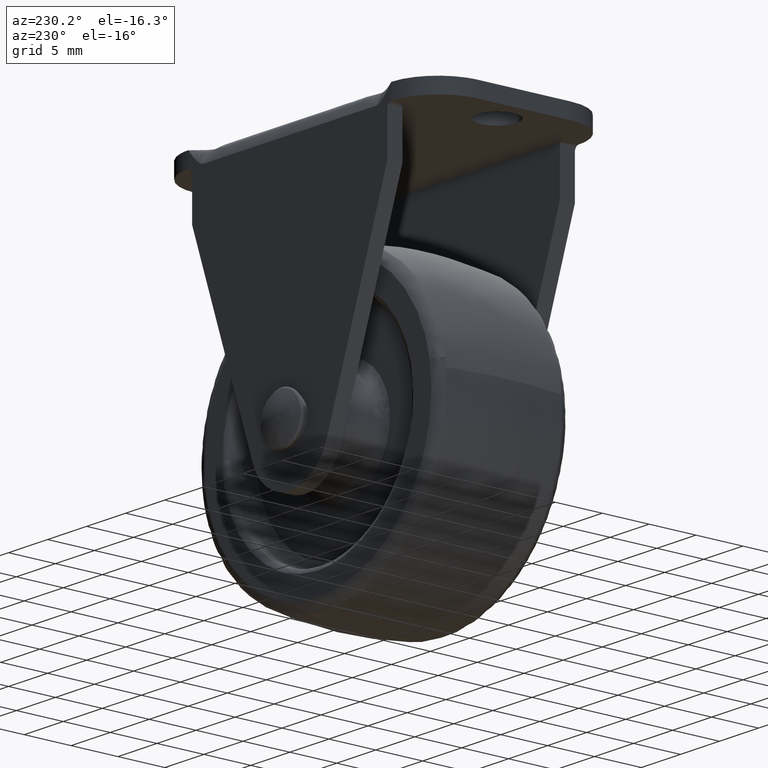
[diagram: clean part render]
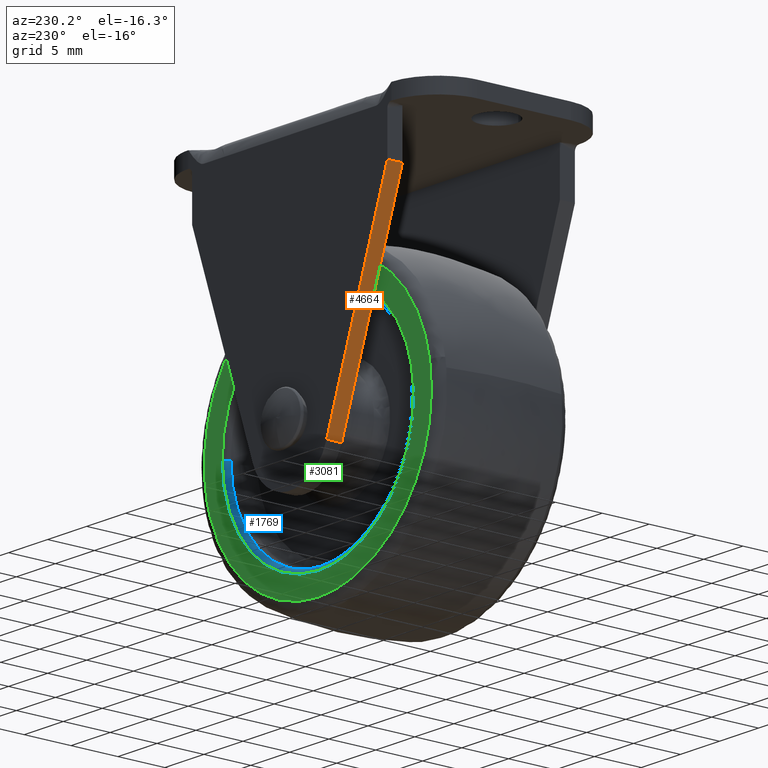
[diagram: same view with three faces highlighted in distinct colors, each labeled with its STEP entity id]
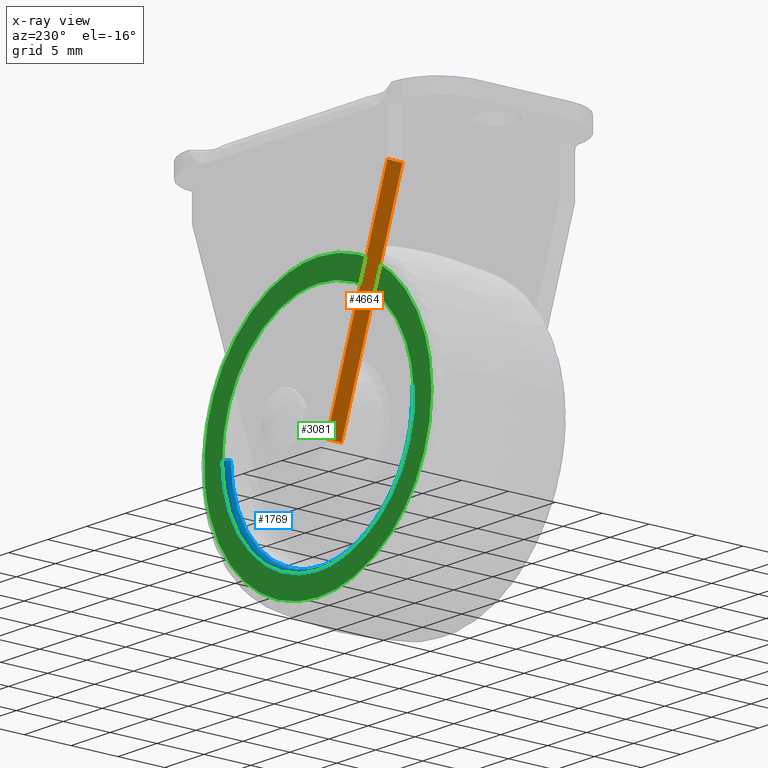
[diagram: x-ray of the same camera — body ghosted, the three highlighted faces saturated]
A machine part, auxiliary view with three faces highlighted in distinct colors.
The next image is the same camera in x-ray (body ghosted, the three faces saturated) — at least one of them is partly hidden behind the body in this view.
Their STEP definitions:

[orange] entity #4664 — the highlighted face is a freeform B-spline surface patch.
#4629=CARTESIAN_POINT('',(-12.888740007765930,8.320079597570420,20.606743158005479));
#4630=CARTESIAN_POINT('',(-4.328720783489982,8.320079597570420,-3.763720752302182));
#4631=CARTESIAN_POINT('',(-12.888740007765930,10.079920059106829,20.606743158005479));
#4632=CARTESIAN_POINT('',(-4.328720783489982,10.079920059106829,-3.763720752302182));
#4633=B_SPLINE_SURFACE_WITH_KNOTS('',1,1,((#4629,#4631),(#4630,#4632)),.UNSPECIFIED.,.F.,.F.,.U.,(2,2),(2,2),(0.0,25.830087888421549),(0.041708123734593,0.958291697451472),.UNSPECIFIED.);
#4634=CARTESIAN_POINT('',(-4.717459000000000,8.400000000000000,-2.656979000000170));
#4635=VERTEX_POINT('',#4634);
#4636=CARTESIAN_POINT('',(-12.500002000000000,8.400000000000000,19.500001999999999));
#4637=VERTEX_POINT('',#4636);
#4638=CARTESIAN_POINT('',(-4.717459000000000,8.400000000000000,-2.656979000000170));
#4639=CARTESIAN_POINT('',(-12.500002000000000,8.400000000000000,19.500001999999999));
#4640=QUASI_UNIFORM_CURVE('',1,(#4638,#4639),.UNSPECIFIED.,.F.,.U.);
#4641=EDGE_CURVE('',#4635,#4637,#4640,.T.);
#4642=ORIENTED_EDGE('',*,*,#4641,.T.);
#4643=CARTESIAN_POINT('',(-12.500002000000000,10.0,19.500001999999999));
#4644=VERTEX_POINT('',#4643);
#4645=CARTESIAN_POINT('',(-12.500002000000000,10.0,19.500001999999999));
#4646=CARTESIAN_POINT('',(-12.500002000000000,8.400000000000000,19.500001999999999));
#4647=QUASI_UNIFORM_CURVE('',1,(#4645,#4646),.UNSPECIFIED.,.F.,.U.);
#4648=EDGE_CURVE('',#4644,#4637,#4647,.T.);
#4649=ORIENTED_EDGE('',*,*,#4648,.F.);
#4650=CARTESIAN_POINT('',(-4.717459000000000,10.0,-2.656979000000085));
#4651=VERTEX_POINT('',#4650);
#4652=CARTESIAN_POINT('',(-4.717459000000000,10.0,-2.656979000000085));
#4653=CARTESIAN_POINT('',(-12.500002000000000,10.0,19.500001999999999));
#4654=QUASI_UNIFORM_CURVE('',1,(#4652,#4653),.UNSPECIFIED.,.F.,.U.);
#4655=EDGE_CURVE('',#4651,#4644,#4654,.T.);
#4656=ORIENTED_EDGE('',*,*,#4655,.F.);
#4657=CARTESIAN_POINT('',(-4.717459000000000,10.0,-2.656979000000085));
#4658=CARTESIAN_POINT('',(-4.717459000000000,8.400000000000000,-2.656979000000170));
#4659=QUASI_UNIFORM_CURVE('',1,(#4657,#4658),.UNSPECIFIED.,.F.,.U.);
#4660=EDGE_CURVE('',#4651,#4635,#4659,.T.);
#4661=ORIENTED_EDGE('',*,*,#4660,.T.);
#4662=EDGE_LOOP('',(#4642,#4649,#4656,#4661));
#4663=FACE_OUTER_BOUND('',#4662,.T.);
#4664=ADVANCED_FACE('',(#4663),#4633,.F.);

[blue] entity #1769 — the highlighted face is a freeform B-spline surface patch.
#378=CARTESIAN_POINT('',(-8.663009304085811,6.500000000000000,-7.938184288445427));
#379=VERTEX_POINT('',#378);
#385=CARTESIAN_POINT('',(-11.721396667625029,6.500000000598356,0.819365706012148));
#386=VERTEX_POINT('',#385);
#387=CARTESIAN_POINT('',(-11.721396667625028,6.500000000598356,0.819365706012148));
#388=CARTESIAN_POINT('',(-11.750000000000004,6.500000000000000,0.410182111528568));
#389=CARTESIAN_POINT('',(-11.750000000000000,6.500000000000000,8.173480E-016));
#390=CARTESIAN_POINT('',(-11.750000000000005,6.500000000000002,-4.569324082704115));
#391=CARTESIAN_POINT('',(-8.663009304085811,6.500000000000001,-7.938184288445428));
#399=(BOUNDED_CURVE()B_SPLINE_CURVE(2,(#387,#388,#389,#390,#391),.UNSPECIFIED.,.F.,.U.)B_SPLINE_CURVE_WITH_KNOTS((3,2,3),(0.737833686535114,0.750000000000000,0.868415186394287),.UNSPECIFIED.)CURVE()GEOMETRIC_REPRESENTATION_ITEM()RATIONAL_B_SPLINE_CURVE((0.972879876387023,0.985746277152704,1.0,0.861267979602330,0.853959783638628))REPRESENTATION_ITEM(''));
#400=EDGE_CURVE('',#386,#379,#399,.T.);
#417=CARTESIAN_POINT('',(11.749072269394510,6.500000000625669,-0.147650968655843));
#418=VERTEX_POINT('',#417);
#434=CARTESIAN_POINT('',(4.365578881762574,6.500000000045359,-10.908905583374930));
#435=VERTEX_POINT('',#434);
#436=CARTESIAN_POINT('',(4.365578881762575,6.500000000045359,-10.908905583374933));
#437=CARTESIAN_POINT('',(11.650471955109312,6.500000000202570,-7.993601649917547));
#438=CARTESIAN_POINT('',(11.749072269394508,6.500000000625669,-0.147650968655843));
#446=(BOUNDED_CURVE()B_SPLINE_CURVE(2,(#436,#437,#438),.UNSPECIFIED.,.F.,.U.)B_SPLINE_CURVE_WITH_KNOTS((3,3),(0.063083066311740,0.247784295920936),.UNSPECIFIED.)CURVE()GEOMETRIC_REPRESENTATION_ITEM()RATIONAL_B_SPLINE_CURVE((0.889485124632236,0.782299011502005,0.994854295642190))REPRESENTATION_ITEM(''));
#447=EDGE_CURVE('',#435,#418,#446,.T.);
#487=CARTESIAN_POINT('',(0.0,6.500000000000000,-11.750000000000000));
#488=VERTEX_POINT('',#487);
#489=CARTESIAN_POINT('',(0.0,6.500000000000000,-11.750000000000000));
#490=CARTESIAN_POINT('',(2.263814184315645,6.500000000000001,-11.750000000000000));
#491=CARTESIAN_POINT('',(4.365578881762575,6.500000000045359,-10.908905583374933));
#499=(BOUNDED_CURVE()B_SPLINE_CURVE(2,(#489,#490,#491),.UNSPECIFIED.,.F.,.U.)B_SPLINE_CURVE_WITH_KNOTS((3,3),(0.0,0.063083066311740),.UNSPECIFIED.)CURVE()GEOMETRIC_REPRESENTATION_ITEM()RATIONAL_B_SPLINE_CURVE((1.0,0.926093590621329,0.889485124632236))REPRESENTATION_ITEM(''));
#500=EDGE_CURVE('',#488,#435,#499,.T.);
#502=CARTESIAN_POINT('',(-8.663009304085811,6.500000000000000,-7.938184288445429));
#503=CARTESIAN_POINT('',(-5.170124791972724,6.499999999999999,-11.750000000000000));
#504=CARTESIAN_POINT('',(0.0,6.500000000000000,-11.750000000000000));
#512=(BOUNDED_CURVE()B_SPLINE_CURVE(2,(#502,#503,#504),.UNSPECIFIED.,.F.,.U.)B_SPLINE_CURVE_WITH_KNOTS((3,3),(0.868415186394287,1.0),.UNSPECIFIED.)CURVE()GEOMETRIC_REPRESENTATION_ITEM()RATIONAL_B_SPLINE_CURVE((0.853959783638628,0.845838801584219,1.0))REPRESENTATION_ITEM(''));
#513=EDGE_CURVE('',#379,#488,#512,.T.);
#1674=CARTESIAN_POINT('',(-11.722604084431895,6.465231436311263,0.819449458449814));
#1675=CARTESIAN_POINT('',(-11.746056353242443,6.465231436311262,0.483953889671464));
#1676=CARTESIAN_POINT('',(-11.750282491723603,6.465231436311261,0.147666177532277));
#1677=CARTESIAN_POINT('',(-11.897948669255873,6.465231436311261,-11.602616314191319));
#1678=CARTESIAN_POINT('',(-0.147666177532278,6.465231436311261,-11.750282491723603));
#1679=CARTESIAN_POINT('',(11.602616314191319,6.465231436311261,-11.897948669255873));
#1680=CARTESIAN_POINT('',(11.750282491723603,6.465231436311261,-0.147666177532279));
#1681=CARTESIAN_POINT('',(-11.682722490151006,7.038768810626960,0.816661600854334));
#1682=CARTESIAN_POINT('',(-11.706094971751911,7.038768810626956,0.482307425068589));
#1683=CARTESIAN_POINT('',(-11.710306732443019,7.038768810626956,0.147163800881242));
#1684=CARTESIAN_POINT('',(-11.857470533324260,7.038768810626957,-11.563142931561774));
#1685=CARTESIAN_POINT('',(-0.147163800881242,7.038768810626956,-11.710306732443019));
#1686=CARTESIAN_POINT('',(11.563142931561774,7.038768810626957,-11.857470533324260));
#1687=CARTESIAN_POINT('',(11.710306732443019,7.038768810626956,-0.147163800881243));
#1688=CARTESIAN_POINT('',(-12.254863673897582,6.998789668385300,0.856656194188814));
#1689=CARTESIAN_POINT('',(-12.279380782472339,6.998789668385297,0.505927599333718));
#1690=CARTESIAN_POINT('',(-12.283798806878899,6.998789668385299,0.154370894203181));
#1691=CARTESIAN_POINT('',(-12.438169701082078,6.998789668385299,-12.129427912675716));
#1692=CARTESIAN_POINT('',(-0.154370894203182,6.998789668385299,-12.283798806878899));
#1693=CARTESIAN_POINT('',(12.129427912675716,6.998789668385299,-12.438169701082078));
#1694=CARTESIAN_POINT('',(12.283798806878899,6.998789668385299,-0.154370894203182));
#1702=(BOUNDED_SURFACE()B_SPLINE_SURFACE(2,2,((#1674,#1681,#1688),(#1675,#1682,#1689),(#1676,#1683,#1690),(#1677,#1684,#1691),(#1678,#1685,#1692),(#1679,#1686,#1693),(#1680,#1687,#1694)),.UNSPECIFIED.,.F.,.F.,.U.)B_SPLINE_SURFACE_WITH_KNOTS((3,2,2,3),(3,3),(0.0,0.814162076553549,21.168233401547319,41.522304726541101),(0.0,0.911187216249058),.UNSPECIFIED.)GEOMETRIC_REPRESENTATION_ITEM()RATIONAL_B_SPLINE_SURFACE(((0.889999307349838,0.584039678857513,0.889999467405271),(0.899812878455395,0.590479588270478,0.899813040275678),(0.910479802685542,0.597479489225820,0.910479966424140),(0.643806442612336,0.422481798451453,0.643806558393010),(0.910479802685542,0.597479489225820,0.910479966424140),(0.643806442612336,0.422481798451453,0.643806558393010),(0.910479802685542,0.597479489225820,0.910479966424140)))REPRESENTATION_ITEM('')SURFACE());
#1703=ORIENTED_EDGE('',*,*,#400,.T.);
#1704=ORIENTED_EDGE('',*,*,#513,.T.);
#1705=ORIENTED_EDGE('',*,*,#500,.T.);
#1706=ORIENTED_EDGE('',*,*,#447,.T.);
#1707=CARTESIAN_POINT('',(12.249032790032880,7.0,-0.153933988635650));
#1708=VERTEX_POINT('',#1707);
#1709=CARTESIAN_POINT('',(11.749072269394508,6.500000000625669,-0.147650968655843));
#1710=CARTESIAN_POINT('',(11.749072270646074,6.999999997074120,-0.147650968645119));
#1711=CARTESIAN_POINT('',(12.249032790032881,6.999999999999999,-0.153933988635650));
#1719=(BOUNDED_CURVE()B_SPLINE_CURVE(2,(#1709,#1710,#1711),.UNSPECIFIED.,.F.,.U.)B_SPLINE_CURVE_WITH_KNOTS((3,3),(-1.725134640715331,-0.274865362719136),.UNSPECIFIED.)CURVE()GEOMETRIC_REPRESENTATION_ITEM()RATIONAL_B_SPLINE_CURVE((0.883342148737349,0.624617225655992,0.883342147511946))REPRESENTATION_ITEM(''));
#1720=EDGE_CURVE('',#418,#1708,#1719,.T.);
#1721=ORIENTED_EDGE('',*,*,#1720,.T.);
#1722=CARTESIAN_POINT('',(0.0,7.0,-12.250000000000000));
#1723=VERTEX_POINT('',#1722);
#1724=CARTESIAN_POINT('',(0.0,7.0,-12.250000000000000));
#1725=CARTESIAN_POINT('',(12.097021141200718,6.999999999999999,-12.249999999999996));
#1726=CARTESIAN_POINT('',(12.249032790032881,7.0,-0.153933988635651));
#1734=(BOUNDED_CURVE()B_SPLINE_CURVE(2,(#1724,#1725,#1726),.UNSPECIFIED.,.F.,.U.)B_SPLINE_CURVE_WITH_KNOTS((3,3),(0.0,0.247784295919346),.UNSPECIFIED.)CURVE()GEOMETRIC_REPRESENTATION_ITEM()RATIONAL_B_SPLINE_CURVE((1.0,0.709702639987031,0.994854295638529))REPRESENTATION_ITEM(''));
#1735=EDGE_CURVE('',#1723,#1708,#1734,.T.);
#1736=ORIENTED_EDGE('',*,*,#1735,.F.);
#1737=CARTESIAN_POINT('',(-12.220179503464220,7.0,0.854232331780607));
#1738=VERTEX_POINT('',#1737);
#1739=CARTESIAN_POINT('',(-12.220179503464228,7.0,0.854232331780607));
#1740=CARTESIAN_POINT('',(-12.249999999999995,6.999999999999999,0.427636669522160));
#1741=CARTESIAN_POINT('',(-12.250000000000000,7.0,8.173480E-016));
#1742=CARTESIAN_POINT('',(-12.249999999999996,6.999999999999999,-12.249999999999996));
#1743=CARTESIAN_POINT('',(0.0,7.0,-12.250000000000000));
#1751=(BOUNDED_CURVE()B_SPLINE_CURVE(2,(#1739,#1740,#1741,#1742,#1743),.UNSPECIFIED.,.F.,.U.)B_SPLINE_CURVE_WITH_KNOTS((3,2,3),(0.737833686533538,0.750000000000000,1.0),.UNSPECIFIED.)CURVE()GEOMETRIC_REPRESENTATION_ITEM()RATIONAL_B_SPLINE_CURVE((0.972879876383689,0.985746277150858,1.0,0.707106781186547,1.0))REPRESENTATION_ITEM(''));
#1752=EDGE_CURVE('',#1738,#1723,#1751,.T.);
#1753=ORIENTED_EDGE('',*,*,#1752,.F.);
#1754=CARTESIAN_POINT('',(-11.721396667625029,6.500000000598356,0.819365706012148));
#1755=CARTESIAN_POINT('',(-11.721396668818880,6.999999997840527,0.819365706094896));
#1756=CARTESIAN_POINT('',(-12.220179503464227,7.0,0.854232331780607));
#1764=(BOUNDED_CURVE()B_SPLINE_CURVE(2,(#1754,#1755,#1756),.UNSPECIFIED.,.F.,.U.)B_SPLINE_CURVE_WITH_KNOTS((3,3),(-1.725134640827369,-0.274865361147246),.UNSPECIFIED.)CURVE()GEOMETRIC_REPRESENTATION_ITEM()RATIONAL_B_SPLINE_CURVE((0.863472074516666,0.610566961061639,0.863472073827980))REPRESENTATION_ITEM(''));
#1765=EDGE_CURVE('',#386,#1738,#1764,.T.);
#1766=ORIENTED_EDGE('',*,*,#1765,.F.);
#1767=EDGE_LOOP('',(#1703,#1704,#1705,#1706,#1721,#1736,#1753,#1766));
#1768=FACE_OUTER_BOUND('',#1767,.T.);
#1769=ADVANCED_FACE('',(#1768),#1702,.T.);

[green] entity #3081 — the highlighted face is a freeform B-spline surface patch.
#1707=CARTESIAN_POINT('',(12.249032790032880,7.0,-0.153933988635650));
#1708=VERTEX_POINT('',#1707);
#1722=CARTESIAN_POINT('',(0.0,7.0,-12.250000000000000));
#1723=VERTEX_POINT('',#1722);
#1724=CARTESIAN_POINT('',(0.0,7.0,-12.250000000000000));
#1725=CARTESIAN_POINT('',(12.097021141200718,6.999999999999999,-12.249999999999996));
#1726=CARTESIAN_POINT('',(12.249032790032881,7.0,-0.153933988635651));
#1734=(BOUNDED_CURVE()B_SPLINE_CURVE(2,(#1724,#1725,#1726),.UNSPECIFIED.,.F.,.U.)B_SPLINE_CURVE_WITH_KNOTS((3,3),(0.0,0.247784295919346),.UNSPECIFIED.)CURVE()GEOMETRIC_REPRESENTATION_ITEM()RATIONAL_B_SPLINE_CURVE((1.0,0.709702639987031,0.994854295638529))REPRESENTATION_ITEM(''));
#1735=EDGE_CURVE('',#1723,#1708,#1734,.T.);
#1737=CARTESIAN_POINT('',(-12.220179503464220,7.0,0.854232331780607));
#1738=VERTEX_POINT('',#1737);
#1739=CARTESIAN_POINT('',(-12.220179503464228,7.0,0.854232331780607));
#1740=CARTESIAN_POINT('',(-12.249999999999995,6.999999999999999,0.427636669522160));
#1741=CARTESIAN_POINT('',(-12.250000000000000,7.0,8.173480E-016));
#1742=CARTESIAN_POINT('',(-12.249999999999996,6.999999999999999,-12.249999999999996));
#1743=CARTESIAN_POINT('',(0.0,7.0,-12.250000000000000));
#1751=(BOUNDED_CURVE()B_SPLINE_CURVE(2,(#1739,#1740,#1741,#1742,#1743),.UNSPECIFIED.,.F.,.U.)B_SPLINE_CURVE_WITH_KNOTS((3,2,3),(0.737833686533538,0.750000000000000,1.0),.UNSPECIFIED.)CURVE()GEOMETRIC_REPRESENTATION_ITEM()RATIONAL_B_SPLINE_CURVE((0.972879876383689,0.985746277150858,1.0,0.707106781186547,1.0))REPRESENTATION_ITEM(''));
#1752=EDGE_CURVE('',#1738,#1723,#1751,.T.);
#1795=CARTESIAN_POINT('',(0.0,7.0,12.250000000000000));
#1796=VERTEX_POINT('',#1795);
#1797=CARTESIAN_POINT('',(0.0,7.0,12.250000000000000));
#1798=CARTESIAN_POINT('',(-11.423576378909734,7.0,12.249999999999996));
#1799=CARTESIAN_POINT('',(-12.220179503464228,7.0,0.854232331780607));
#1807=(BOUNDED_CURVE()B_SPLINE_CURVE(2,(#1797,#1798,#1799),.UNSPECIFIED.,.F.,.U.)B_SPLINE_CURVE_WITH_KNOTS((3,3),(0.500000000000000,0.737833686533537),.UNSPECIFIED.)CURVE()GEOMETRIC_REPRESENTATION_ITEM()RATIONAL_B_SPLINE_CURVE((1.0,0.721360504035690,0.972879876383688))REPRESENTATION_ITEM(''));
#1808=EDGE_CURVE('',#1796,#1738,#1807,.T.);
#1810=CARTESIAN_POINT('',(12.249032790032881,7.0,-0.153933988635651));
#1811=CARTESIAN_POINT('',(12.250000000000005,7.000000000000001,-0.076970032983623));
#1812=CARTESIAN_POINT('',(12.250000000000000,7.0,8.173480E-016));
#1813=CARTESIAN_POINT('',(12.249999999999996,6.999999999999999,12.249999999999996));
#1814=CARTESIAN_POINT('',(0.0,7.0,12.250000000000000));
#1822=(BOUNDED_CURVE()B_SPLINE_CURVE(2,(#1810,#1811,#1812,#1813,#1814),.UNSPECIFIED.,.F.,.U.)B_SPLINE_CURVE_WITH_KNOTS((3,2,3),(0.247784295919346,0.250000000000000,0.500000000000000),.UNSPECIFIED.)CURVE()GEOMETRIC_REPRESENTATION_ITEM()RATIONAL_B_SPLINE_CURVE((0.994854295638529,0.997404141199516,1.0,0.707106781186547,1.0))REPRESENTATION_ITEM(''));
#1823=EDGE_CURVE('',#1708,#1796,#1822,.T.);
#1853=CARTESIAN_POINT('',(14.433406335400861,6.999999999999970,-1.721420277714830));
#1854=VERTEX_POINT('',#1853);
#1855=CARTESIAN_POINT('',(0.0,7.0,14.535697650934241));
#1856=VERTEX_POINT('',#1855);
#1857=CARTESIAN_POINT('',(14.433406335400859,6.999999999999970,-1.721420277714831));
#1858=CARTESIAN_POINT('',(14.535697650934237,7.0,-0.863749348226889));
#1859=CARTESIAN_POINT('',(14.535697650934241,7.0,8.173480E-016));
#1860=CARTESIAN_POINT('',(14.535697650934241,6.999999999999999,14.535697650934241));
#1861=CARTESIAN_POINT('',(0.0,7.0,14.535697650934241));
#1869=(BOUNDED_CURVE()B_SPLINE_CURVE(2,(#1857,#1858,#1859,#1860,#1861),.UNSPECIFIED.,.F.,.U.)B_SPLINE_CURVE_WITH_KNOTS((3,2,3),(0.229495616428720,0.250000000000000,0.500000000000000),.UNSPECIFIED.)CURVE()GEOMETRIC_REPRESENTATION_ITEM()RATIONAL_B_SPLINE_CURVE((0.955895753455693,0.975977620384088,1.0,0.707106781186547,1.0))REPRESENTATION_ITEM(''));
#1870=EDGE_CURVE('',#1854,#1856,#1869,.T.);
#1872=CARTESIAN_POINT('',(-14.311329486041810,6.999999999999970,2.544082267523253));
#1873=VERTEX_POINT('',#1872);
#1874=CARTESIAN_POINT('',(0.0,7.0,14.535697650934241));
#1875=CARTESIAN_POINT('',(-12.179615859596465,6.999999999999999,14.535697650934246));
#1876=CARTESIAN_POINT('',(-14.311329486041817,6.999999999999970,2.544082267523253));
#1884=(BOUNDED_CURVE()B_SPLINE_CURVE(2,(#1874,#1875,#1876),.UNSPECIFIED.,.F.,.U.)B_SPLINE_CURVE_WITH_KNOTS((3,3),(0.500000000000000,0.719918253208893),.UNSPECIFIED.)CURVE()GEOMETRIC_REPRESENTATION_ITEM()RATIONAL_B_SPLINE_CURVE((1.0,0.742349739767262,0.937995440888127))REPRESENTATION_ITEM(''));
#1885=EDGE_CURVE('',#1856,#1873,#1884,.T.);
#1979=CARTESIAN_POINT('',(0.0,7.0,-14.535697650934241));
#1980=VERTEX_POINT('',#1979);
#1981=CARTESIAN_POINT('',(0.0,7.0,-14.535697650934241));
#1982=CARTESIAN_POINT('',(12.905093724351484,6.999999999999998,-14.535697650934244));
#1983=CARTESIAN_POINT('',(14.433406335400859,6.999999999999970,-1.721420277714831));
#1991=(BOUNDED_CURVE()B_SPLINE_CURVE(2,(#1981,#1982,#1983),.UNSPECIFIED.,.F.,.U.)B_SPLINE_CURVE_WITH_KNOTS((3,3),(0.0,0.229495616428720),.UNSPECIFIED.)CURVE()GEOMETRIC_REPRESENTATION_ITEM()RATIONAL_B_SPLINE_CURVE((1.0,0.731129160802459,0.955895753455693))REPRESENTATION_ITEM(''));
#1992=EDGE_CURVE('',#1980,#1854,#1991,.T.);
#2041=CARTESIAN_POINT('',(-14.311329486041808,6.999999999999970,2.544082267523253));
#2042=CARTESIAN_POINT('',(-14.535697650934239,6.999999999999999,1.281934892744470));
#2043=CARTESIAN_POINT('',(-14.535697650934241,7.0,8.173480E-016));
#2044=CARTESIAN_POINT('',(-14.535697650934241,6.999999999999999,-14.535697650934241));
#2045=CARTESIAN_POINT('',(0.0,7.0,-14.535697650934241));
#2053=(BOUNDED_CURVE()B_SPLINE_CURVE(2,(#2041,#2042,#2043,#2044,#2045),.UNSPECIFIED.,.F.,.U.)B_SPLINE_CURVE_WITH_KNOTS((3,2,3),(0.719918253208893,0.750000000000000,1.0),.UNSPECIFIED.)CURVE()GEOMETRIC_REPRESENTATION_ITEM()RATIONAL_B_SPLINE_CURVE((0.937995440888128,0.964757041419286,1.0,0.707106781186547,1.0))REPRESENTATION_ITEM(''));
#2054=EDGE_CURVE('',#1873,#1980,#2053,.T.);
#3064=CARTESIAN_POINT('',(-15.987788671507911,7.0,-15.987814062818030));
#3065=CARTESIAN_POINT('',(-15.987788671507911,7.0,15.987814582655091));
#3066=CARTESIAN_POINT('',(15.987532988126111,7.0,-15.987814062818030));
#3067=CARTESIAN_POINT('',(15.987532988126111,7.0,15.987814582655091));
#3068=B_SPLINE_SURFACE_WITH_KNOTS('',1,1,((#3064,#3066),(#3065,#3067)),.UNSPECIFIED.,.F.,.F.,.U.,(2,2),(2,2),(0.0,31.975628645473119),(0.0,31.975321659634020),.UNSPECIFIED.);
#3069=ORIENTED_EDGE('',*,*,#2054,.F.);
#3070=ORIENTED_EDGE('',*,*,#1885,.F.);
#3071=ORIENTED_EDGE('',*,*,#1870,.F.);
#3072=ORIENTED_EDGE('',*,*,#1992,.F.);
#3073=EDGE_LOOP('',(#3069,#3070,#3071,#3072));
#3074=FACE_OUTER_BOUND('',#3073,.T.);
#3075=ORIENTED_EDGE('',*,*,#1735,.T.);
#3076=ORIENTED_EDGE('',*,*,#1823,.T.);
#3077=ORIENTED_EDGE('',*,*,#1808,.T.);
#3078=ORIENTED_EDGE('',*,*,#1752,.T.);
#3079=EDGE_LOOP('',(#3075,#3076,#3077,#3078));
#3080=FACE_BOUND('',#3079,.T.);
#3081=ADVANCED_FACE('',(#3074,#3080),#3068,.T.);